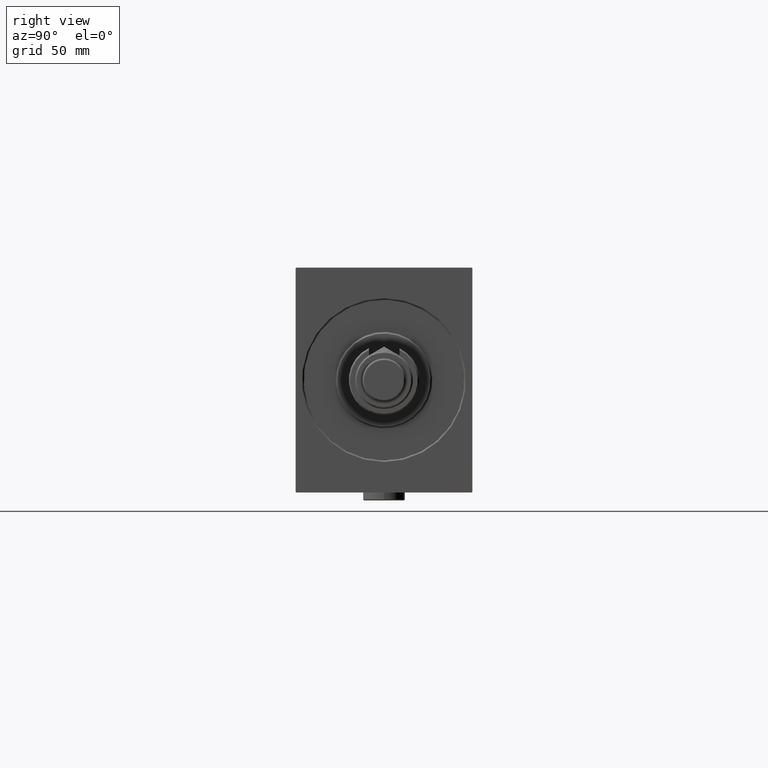
[diagram: clean part render]
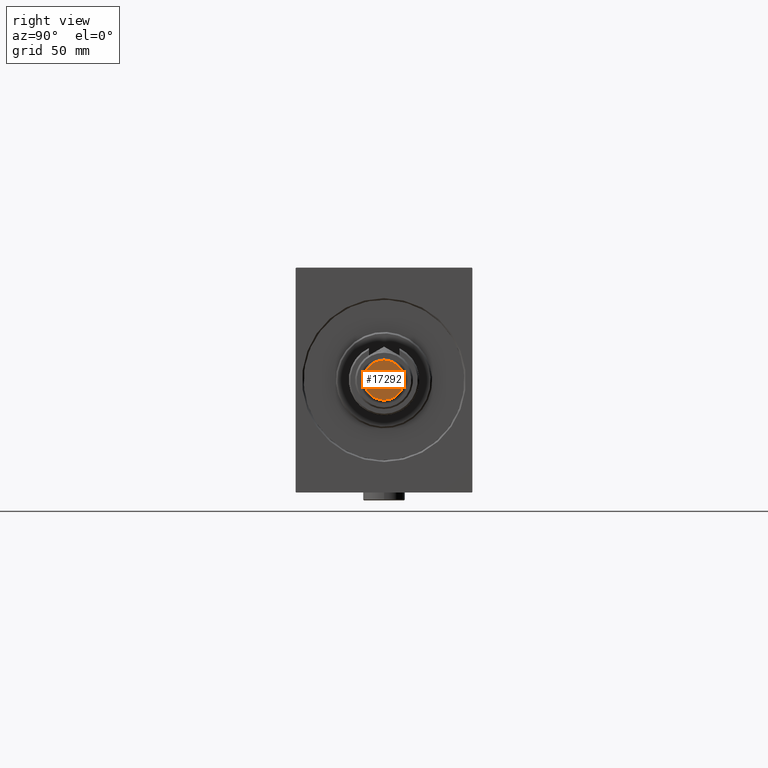
[diagram: same view with one face highlighted and labeled with its STEP entity id]
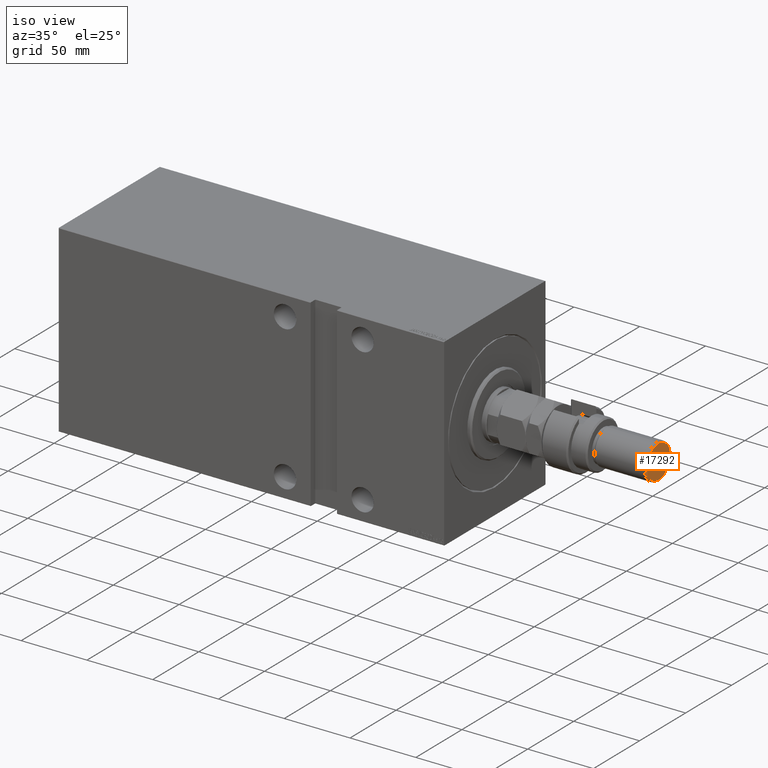
[diagram: same view with one face highlighted and labeled with its STEP entity id]
A machine part, right view. The second image highlights one B-rep face of the part: STEP entity #17292.
A second angle (iso view) of the same face is appended — the face is thin or edge-on in the first view.
In plain terms, the highlighted planar face has unit normal (1, 0, -0).
Its self-contained STEP definition (entity closure, byte-faithful):
#672 = CIRCLE ( 'NONE', #13474, 12.50000000000000888 ) ;
#3501 = PLANE ( 'NONE',  #45136 ) ;
#4815 = ORIENTED_EDGE ( 'NONE', *, *, #15726, .T. ) ;
#4818 = DIRECTION ( 'NONE',  ( 0.000000000000000000, 0.000000000000000000, 1.000000000000000000 ) ) ;
#5927 = CIRCLE ( 'NONE', #9702, 12.50000000000000888 ) ;
#6166 = ORIENTED_EDGE ( 'NONE', *, *, #15987, .T. ) ;
#6570 = FACE_OUTER_BOUND ( 'NONE', #13171, .T. ) ;
#8367 = CARTESIAN_POINT ( 'NONE',  ( 0.000000000000000000, 0.000000000000000000, 74.00000000000001421 ) ) ;
#9702 = AXIS2_PLACEMENT_3D ( 'NONE', #8367, #4818, #30064 ) ;
#12489 = VERTEX_POINT ( 'NONE', #32094 ) ;
#13171 = EDGE_LOOP ( 'NONE', ( #6166, #4815 ) ) ;
#13474 = AXIS2_PLACEMENT_3D ( 'NONE', #44382, #26249, #40150 ) ;
#13881 = CARTESIAN_POINT ( 'NONE',  ( 0.000000000000000000, 0.000000000000000000, 74.00000000000001421 ) ) ;
#15726 = EDGE_CURVE ( 'NONE', #23053, #12489, #5927, .T. ) ;
#15987 = EDGE_CURVE ( 'NONE', #12489, #23053, #672, .T. ) ;
#17292 = ADVANCED_FACE ( 'NONE', ( #6570 ), #3501, .T. ) ;
#23053 = VERTEX_POINT ( 'NONE', #41964 ) ;
#26249 = DIRECTION ( 'NONE',  ( 0.000000000000000000, 0.000000000000000000, 1.000000000000000000 ) ) ;
#30064 = DIRECTION ( 'NONE',  ( 1.000000000000000000, 0.000000000000000000, 0.000000000000000000 ) ) ;
#31815 = DIRECTION ( 'NONE',  ( 1.000000000000000000, 0.000000000000000000, -0.000000000000000000 ) ) ;
#32094 = CARTESIAN_POINT ( 'NONE',  ( -12.50000000000000888, 0.000000000000000000, 74.00000000000001421 ) ) ;
#40150 = DIRECTION ( 'NONE',  ( 1.000000000000000000, 0.000000000000000000, 0.000000000000000000 ) ) ;
#41964 = CARTESIAN_POINT ( 'NONE',  ( 12.50000000000000888, 1.592040838891559884E-15, 74.00000000000001421 ) ) ;
#42647 = DIRECTION ( 'NONE',  ( 0.000000000000000000, 0.000000000000000000, 1.000000000000000000 ) ) ;
#44382 = CARTESIAN_POINT ( 'NONE',  ( 0.000000000000000000, 0.000000000000000000, 74.00000000000001421 ) ) ;
#45136 = AXIS2_PLACEMENT_3D ( 'NONE', #13881, #42647, #31815 ) ;